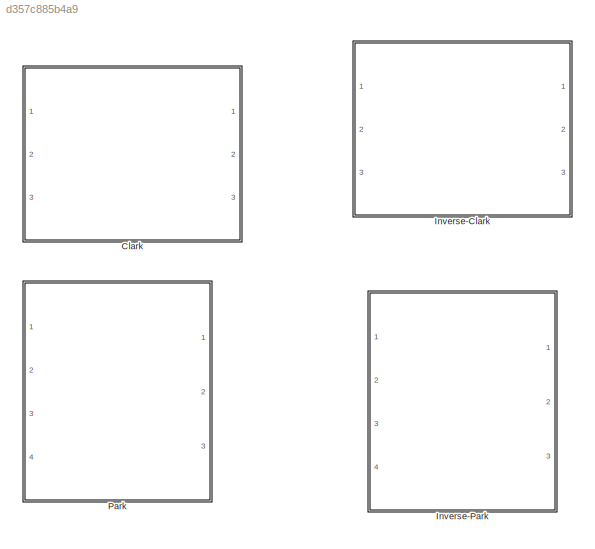
MODEL slx_d357c885b4a9
KIND library
CONFIG AbsTol = auto
CONFIG EnableMultiTasking = off
CONFIG FixedStep = auto
CONFIG MaxStep = auto
CONFIG MinStep = auto
CONFIG RelTol = 1e-3
CONFIG SampleTimeConstraint = Unconstrained
CONFIG Solver = VariableStepAuto
CONFIG SolverName = VariableStepAuto
CONFIG StartTime = 0.0
CONFIG StopTime = 10.0
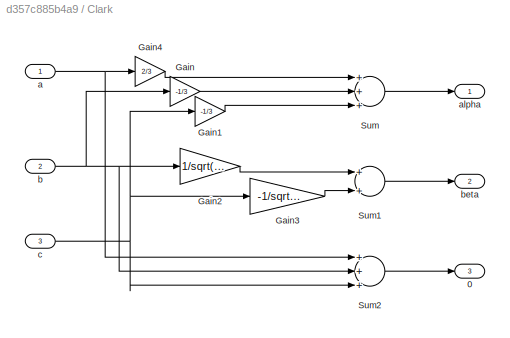
BLOCK [SubSystem] Clark
  Ports = [3, 3]
  RequestExecContextInheritance = off
BLOCK [Outport] Clark/0
  IconDisplay = Port number
  Port = 3
BLOCK [Gain] Clark/Gain
  Gain = -1/3
  OutDataTypeStr = Inherit: Inherit via internal rule
  ParamDataTypeStr = Inherit: Inherit via internal rule
  SaturateOnIntegerOverflow = off
BLOCK [Gain] Clark/Gain1
  Gain = -1/3
  OutDataTypeStr = Inherit: Inherit via internal rule
  ParamDataTypeStr = Inherit: Inherit via internal rule
  SaturateOnIntegerOverflow = off
BLOCK [Gain] Clark/Gain2
  Gain = 1/sqrt(3)
  OutDataTypeStr = Inherit: Inherit via internal rule
  ParamDataTypeStr = Inherit: Inherit via internal rule
  SaturateOnIntegerOverflow = off
BLOCK [Gain] Clark/Gain3
  Gain = -1/sqrt(3)
  OutDataTypeStr = Inherit: Inherit via internal rule
  ParamDataTypeStr = Inherit: Inherit via internal rule
  SaturateOnIntegerOverflow = off
BLOCK [Gain] Clark/Gain4
  Gain = 2/3
  OutDataTypeStr = Inherit: Inherit via internal rule
  ParamDataTypeStr = Inherit: Inherit via internal rule
  SaturateOnIntegerOverflow = off
BLOCK [Sum] Clark/Sum
  InputSameDT = off
  Inputs = +++
  OutDataTypeStr = Inherit: Inherit via internal rule
  Ports = [3, 1]
  SaturateOnIntegerOverflow = off
BLOCK [Sum] Clark/Sum1
  InputSameDT = off
  OutDataTypeStr = Inherit: Inherit via internal rule
  Ports = [2, 1]
  SaturateOnIntegerOverflow = off
BLOCK [Sum] Clark/Sum2
  InputSameDT = off
  Inputs = +++
  OutDataTypeStr = Inherit: Inherit via internal rule
  Ports = [3, 1]
  SaturateOnIntegerOverflow = off
BLOCK [Inport] Clark/a
  IconDisplay = Port number
BLOCK [Outport] Clark/alpha
  IconDisplay = Port number
BLOCK [Inport] Clark/b
  IconDisplay = Port number
  Port = 2
BLOCK [Outport] Clark/beta
  IconDisplay = Port number
  Port = 2
BLOCK [Inport] Clark/c
  IconDisplay = Port number
  Port = 3
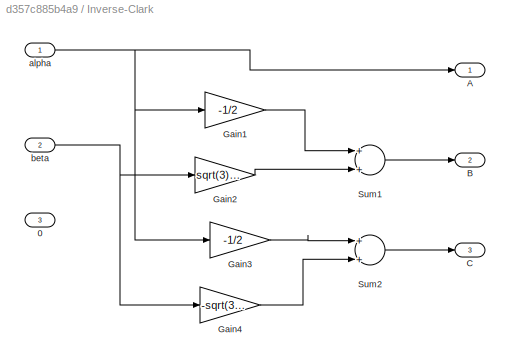
BLOCK [SubSystem] Inverse-Clark
  Ports = [3, 3]
  RequestExecContextInheritance = off
BLOCK [Inport] Inverse-Clark/0
  IconDisplay = Port number
  Port = 3
BLOCK [Outport] Inverse-Clark/A
  IconDisplay = Port number
BLOCK [Outport] Inverse-Clark/B
  IconDisplay = Port number
  Port = 2
BLOCK [Outport] Inverse-Clark/C
  IconDisplay = Port number
  Port = 3
BLOCK [Gain] Inverse-Clark/Gain1
  Gain = -1/2
  OutDataTypeStr = Inherit: Inherit via internal rule
  ParamDataTypeStr = Inherit: Inherit via internal rule
  SaturateOnIntegerOverflow = off
BLOCK [Gain] Inverse-Clark/Gain2
  Gain = sqrt(3)/2
  OutDataTypeStr = Inherit: Inherit via internal rule
  ParamDataTypeStr = Inherit: Inherit via internal rule
  SaturateOnIntegerOverflow = off
BLOCK [Gain] Inverse-Clark/Gain3
  Gain = -1/2
  OutDataTypeStr = Inherit: Inherit via internal rule
  ParamDataTypeStr = Inherit: Inherit via internal rule
  SaturateOnIntegerOverflow = off
BLOCK [Gain] Inverse-Clark/Gain4
  Gain = -sqrt(3)/2
  OutDataTypeStr = Inherit: Inherit via internal rule
  ParamDataTypeStr = Inherit: Inherit via internal rule
  SaturateOnIntegerOverflow = off
BLOCK [Sum] Inverse-Clark/Sum1
  InputSameDT = off
  OutDataTypeStr = Inherit: Inherit via internal rule
  Ports = [2, 1]
  SaturateOnIntegerOverflow = off
BLOCK [Sum] Inverse-Clark/Sum2
  InputSameDT = off
  OutDataTypeStr = Inherit: Inherit via internal rule
  Ports = [2, 1]
  SaturateOnIntegerOverflow = off
BLOCK [Inport] Inverse-Clark/alpha
  IconDisplay = Port number
BLOCK [Inport] Inverse-Clark/beta
  IconDisplay = Port number
  Port = 2
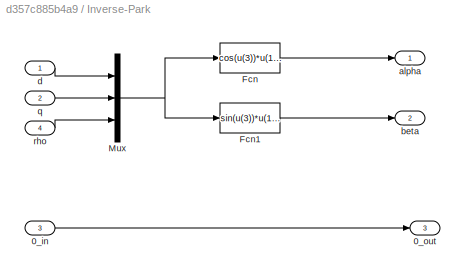
BLOCK [SubSystem] Inverse-Park
  Ports = [4, 3]
  RequestExecContextInheritance = off
BLOCK [Inport] Inverse-Park/0_in
  IconDisplay = Port number
  Port = 3
BLOCK [Outport] Inverse-Park/0_out
  IconDisplay = Port number
  Port = 3
BLOCK [Fcn] Inverse-Park/Fcn
  Expr = cos(u(3))*u(1)-sin(u(3))*u(2)
BLOCK [Fcn] Inverse-Park/Fcn1
  Expr = sin(u(3))*u(1)+cos(u(3))*u(2)
BLOCK [Mux] Inverse-Park/Mux
  DisplayOption = bar
  Inputs = 3
  Ports = [3, 1]
BLOCK [Outport] Inverse-Park/alpha
  IconDisplay = Port number
BLOCK [Outport] Inverse-Park/beta
  IconDisplay = Port number
  Port = 2
BLOCK [Inport] Inverse-Park/d
  IconDisplay = Port number
BLOCK [Inport] Inverse-Park/q
  IconDisplay = Port number
  Port = 2
BLOCK [Inport] Inverse-Park/rho
  IconDisplay = Port number
  Port = 4
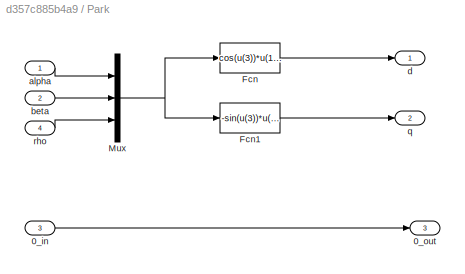
BLOCK [SubSystem] Park
  Ports = [4, 3]
  RequestExecContextInheritance = off
BLOCK [Inport] Park/0_in
  IconDisplay = Port number
  Port = 3
BLOCK [Outport] Park/0_out
  IconDisplay = Port number
  Port = 3
BLOCK [Fcn] Park/Fcn
  Expr = cos(u(3))*u(1)+sin(u(3))*u(2)
BLOCK [Fcn] Park/Fcn1
  Expr = -sin(u(3))*u(1)+cos(u(3))*u(2)
BLOCK [Mux] Park/Mux
  DisplayOption = bar
  Inputs = 3
  Ports = [3, 1]
BLOCK [Inport] Park/alpha
  IconDisplay = Port number
BLOCK [Inport] Park/beta
  IconDisplay = Port number
  Port = 2
BLOCK [Outport] Park/d
  IconDisplay = Port number
BLOCK [Outport] Park/q
  IconDisplay = Port number
  Port = 2
BLOCK [Inport] Park/rho
  IconDisplay = Port number
  Port = 4
LINE Clark/Gain1:1 -> Clark/Sum:3
LINE Clark/Gain2:1 -> Clark/Sum1:1
LINE Clark/Gain3:1 -> Clark/Sum1:2
LINE Clark/Gain4:1 -> Clark/Sum:1
LINE Clark/Gain:1 -> Clark/Sum:2
LINE Clark/Sum1:1 -> Clark/beta:1
LINE Clark/Sum2:1 -> Clark/0:1
LINE Clark/Sum:1 -> Clark/alpha:1
NET Clark/a:1 -> Clark/Gain4:1, Clark/Sum2:1
NET Clark/b:1 -> Clark/Gain2:1, Clark/Gain:1, Clark/Sum2:2
NET Clark/c:1 -> Clark/Gain1:1, Clark/Gain3:1, Clark/Sum2:3
LINE Inverse-Clark/Gain1:1 -> Inverse-Clark/Sum1:1
LINE Inverse-Clark/Gain2:1 -> Inverse-Clark/Sum1:2
LINE Inverse-Clark/Gain3:1 -> Inverse-Clark/Sum2:1
LINE Inverse-Clark/Gain4:1 -> Inverse-Clark/Sum2:2
LINE Inverse-Clark/Sum1:1 -> Inverse-Clark/B:1
LINE Inverse-Clark/Sum2:1 -> Inverse-Clark/C:1
NET Inverse-Clark/alpha:1 -> Inverse-Clark/A:1, Inverse-Clark/Gain1:1, Inverse-Clark/Gain3:1
NET Inverse-Clark/beta:1 -> Inverse-Clark/Gain2:1, Inverse-Clark/Gain4:1
LINE Inverse-Park/0_in:1 -> Inverse-Park/0_out:1
LINE Inverse-Park/Fcn1:1 -> Inverse-Park/beta:1
LINE Inverse-Park/Fcn:1 -> Inverse-Park/alpha:1
NET Inverse-Park/Mux:1 -> Inverse-Park/Fcn1:1, Inverse-Park/Fcn:1
LINE Inverse-Park/d:1 -> Inverse-Park/Mux:1
LINE Inverse-Park/q:1 -> Inverse-Park/Mux:2
LINE Inverse-Park/rho:1 -> Inverse-Park/Mux:3
LINE Park/0_in:1 -> Park/0_out:1
LINE Park/Fcn1:1 -> Park/q:1
LINE Park/Fcn:1 -> Park/d:1
NET Park/Mux:1 -> Park/Fcn1:1, Park/Fcn:1
LINE Park/alpha:1 -> Park/Mux:1
LINE Park/beta:1 -> Park/Mux:2
LINE Park/rho:1 -> Park/Mux:3
note: NET lines group one-source signal fan-out (src -> all destinations, sorted); 1:1 wires keep LINE
